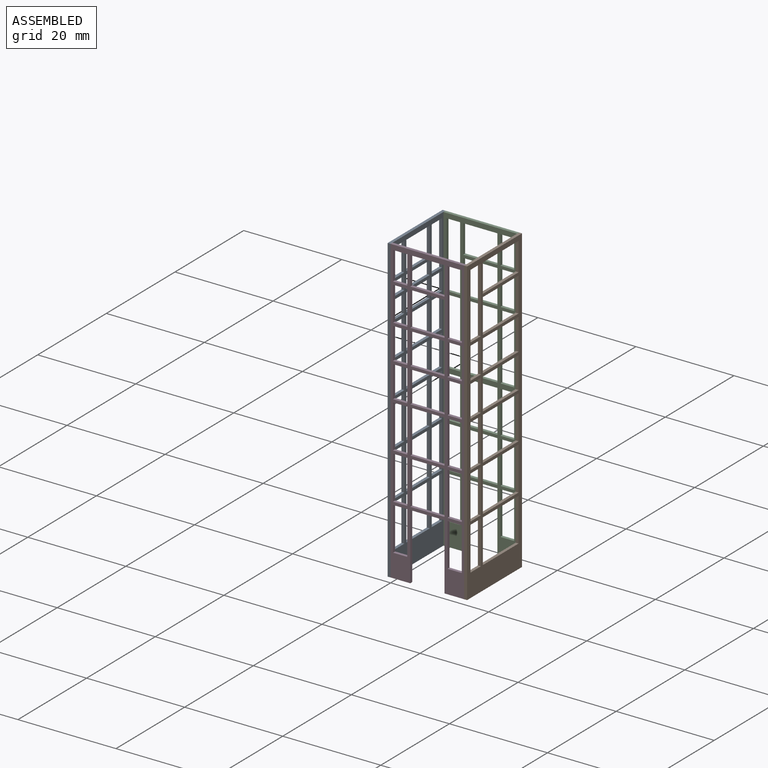
[diagram: assembled view]
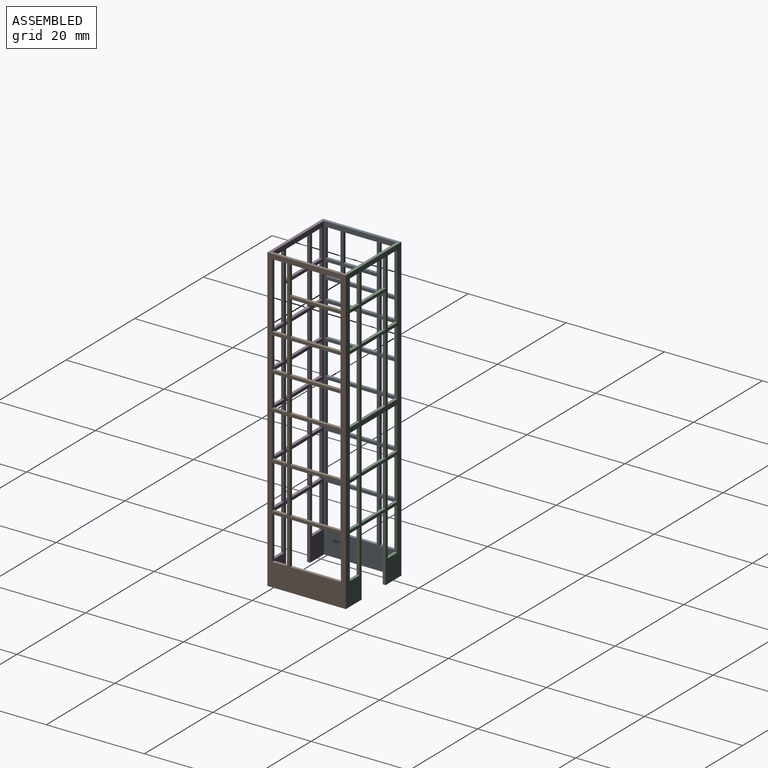
[diagram: assembled view, second angle]
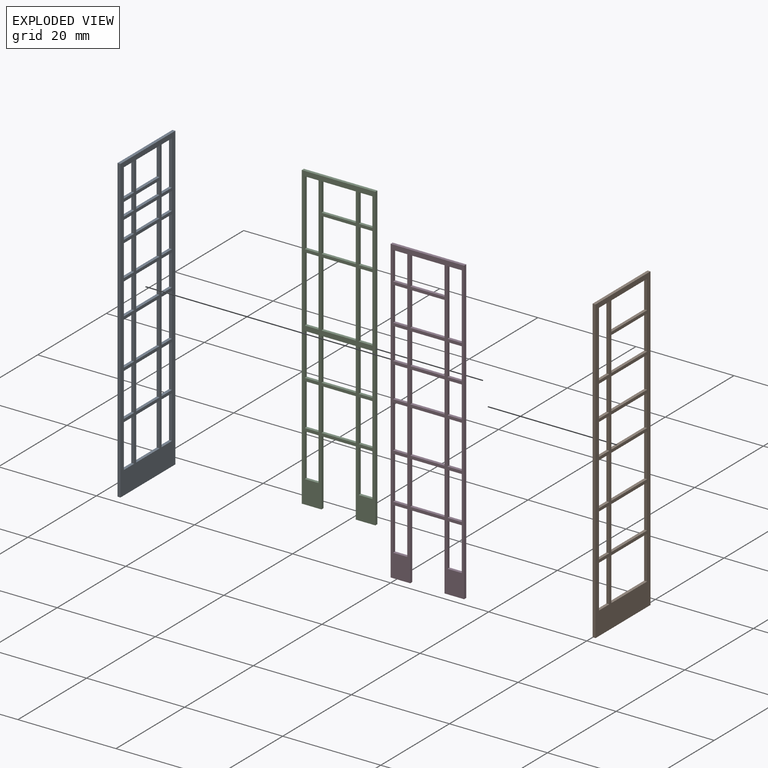
[diagram: exploded view]
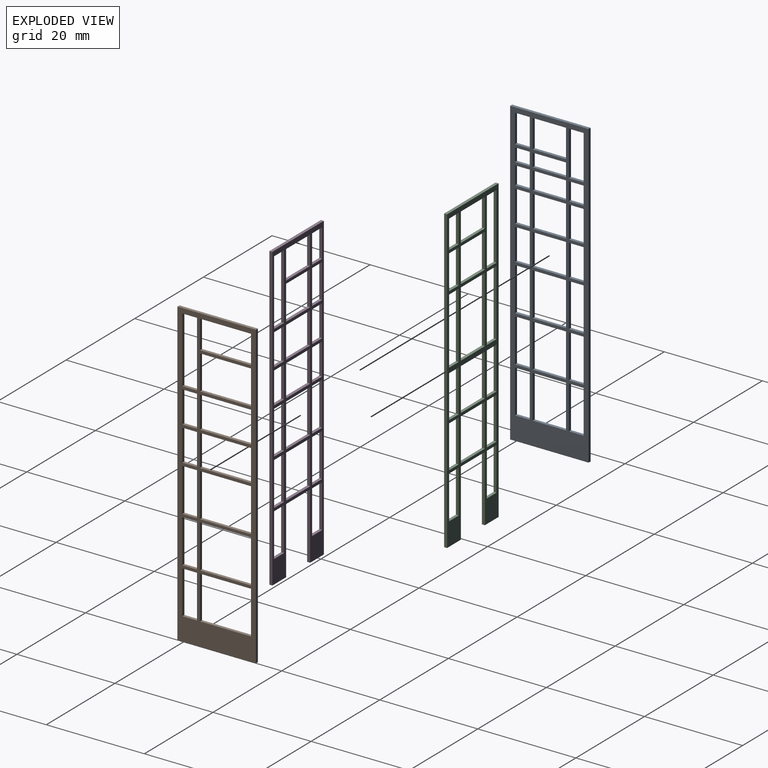
[diagram: exploded view, second angle]
ASSEMBLY  parts=4 mates=3
PART A: 98 faces, bbox 16x0.6x61.5 mm
  f0: plane 61.5x16mm, normal (0,-1,0), area 321.7mm2, adj f1,f2,f3,f4,f5,f6,f7,f8
  f1: plane 8.8x0.6mm, normal (-1,0,0), area 5.3mm2, adj f0,f2,f15,f16
  f2: plane 6.8x0.6mm, normal (0,0,1), area 4.1mm2, adj f0,f1,f3,f16
  f3: plane 8.8x0.6mm, normal (1,0,0), area 5.3mm2, adj f0,f2,f15,f16
  f4: plane 8.8x0.6mm, normal (1,0,0), area 5.3mm2, adj f0,f5,f13,f16
  f5: plane 3x0.6mm, normal (0,0,-1), area 1.8mm2, adj f0,f4,f6,f16
  f6: plane 8.8x0.6mm, normal (-1,0,0), area 5.3mm2, adj f0,f5,f13,f16
  f7: plane 8.8x0.6mm, normal (1,0,0), area 5.3mm2, adj f0,f8,f14,f16
  f8: plane 3x0.6mm, normal (0,0,-1), area 1.8mm2, adj f0,f7,f9,f16
  f9: plane 8.8x0.6mm, normal (-1,0,0), area 5.3mm2, adj f0,f8,f14,f16
  f10: plane 61.5x0.6mm, normal (-1,0,0), area 36.9mm2, adj f0,f11,f16,f97
  f11: plane 16x0.6mm, normal (0,0,-1), area 9.6mm2, adj f0,f10,f12,f16
  f12: plane 61.5x0.6mm, normal (1,0,0), area 36.9mm2, adj f0,f11,f16,f97
  f13: plane 3x0.6mm, normal (0,0,1), area 1.8mm2, adj f0,f4,f6,f16
  f14: plane 3x0.6mm, normal (0,0,1), area 1.8mm2, adj f0,f7,f9,f16
  f15: plane 6.8x0.6mm, normal (0,0,-1), area 4.1mm2, adj f0,f1,f3,f16
  f16: plane 61.5x16mm, normal (0,1,0), area 321.7mm2, adj f1,f2,f3,f4,f5,f6,f7,f8
  f17: plane 8.85x0.6mm, normal (1,0,0), area 5.3mm2, adj f0,f16,f18,f19
  f18: plane 3x0.6mm, normal (0,0,-1), area 1.8mm2, adj f0,f16,f17,f20
  f19: plane 3x0.6mm, normal (0,0,1), area 1.8mm2, adj f0,f16,f17,f20
  f20: plane 8.85x0.6mm, normal (-1,0,0), area 5.3mm2, adj f0,f16,f18,f19
  f21: plane 6.8x0.6mm, normal (0,0,-1), area 4.1mm2, adj f0,f16,f22,f23
  f22: plane 5.8x0.6mm, normal (-1,0,0), area 3.5mm2, adj f0,f16,f21,f24
  f23: plane 5.8x0.6mm, normal (1,0,0), area 3.5mm2, adj f0,f16,f21,f24
  f24: plane 6.8x0.6mm, normal (0,0,1), area 4.1mm2, adj f0,f16,f22,f23
  f25: plane 3x0.6mm, normal (0,0,-1), area 1.8mm2, adj f0,f16,f26,f27
  f26: plane 9.1x0.6mm, normal (-1,0,0), area 5.5mm2, adj f0,f16,f25,f28
  f27: plane 9.1x0.6mm, normal (1,0,0), area 5.5mm2, adj f0,f16,f25,f28
  f28: plane 3x0.6mm, normal (0,0,1), area 1.8mm2, adj f0,f16,f26,f27
  f29: plane 3x0.6mm, normal (0,0,-1), area 1.8mm2, adj f0,f16,f30,f31
  f30: plane 3.7x0.6mm, normal (-1,0,0), area 2.2mm2, adj f0,f16,f29,f32
  f31: plane 3.7x0.6mm, normal (1,0,0), area 2.2mm2, adj f0,f16,f29,f32
  f32: plane 3x0.6mm, normal (0,0,1), area 1.8mm2, adj f0,f16,f30,f31
  f33: plane 3x0.6mm, normal (0,0,-1), area 1.8mm2, adj f0,f16,f34,f35
  f34: plane 6.45x0.6mm, normal (-1,0,0), area 3.9mm2, adj f0,f16,f33,f36
  f35: plane 6.45x0.6mm, normal (1,0,0), area 3.9mm2, adj f0,f16,f33,f36
  f36: plane 3x0.6mm, normal (0,0,1), area 1.8mm2, adj f0,f16,f34,f35
  f37: plane 6.8x0.6mm, normal (0,0,-1), area 4.1mm2, adj f0,f16,f38,f39
  f38: plane 6.45x0.6mm, normal (-1,0,0), area 3.9mm2, adj f0,f16,f37,f40
  f39: plane 6.45x0.6mm, normal (1,0,0), area 3.9mm2, adj f0,f16,f37,f40
  f40: plane 6.8x0.6mm, normal (0,0,1), area 4.1mm2, adj f0,f16,f38,f39
  f41: plane 3x0.6mm, normal (0,0,-1), area 1.8mm2, adj f0,f16,f42,f43
  f42: plane 6.45x0.6mm, normal (-1,0,0), area 3.9mm2, adj f0,f16,f41,f44
  f43: plane 6.45x0.6mm, normal (1,0,0), area 3.9mm2, adj f0,f16,f41,f44
  f44: plane 3x0.6mm, normal (0,0,1), area 1.8mm2, adj f0,f16,f42,f43
  f45: plane 3x0.6mm, normal (0,0,-1), area 1.8mm2, adj f0,f16,f46,f47
  f46: plane 3.7x0.6mm, normal (-1,0,0), area 2.2mm2, adj f0,f16,f45,f48
  f47: plane 3.7x0.6mm, normal (1,0,0), area 2.2mm2, adj f0,f16,f45,f48
  f48: plane 3x0.6mm, normal (0,0,1), area 1.8mm2, adj f0,f16,f46,f47
  f49: plane 3x0.6mm, normal (0,0,-1), area 1.8mm2, adj f0,f16,f50,f51
  f50: plane 2.7x0.6mm, normal (-1,0,0), area 1.6mm2, adj f0,f16,f49,f52
  f51: plane 2.7x0.6mm, normal (1,0,0), area 1.6mm2, adj f0,f16,f49,f52
  f52: plane 3x0.6mm, normal (0,0,1), area 1.8mm2, adj f0,f16,f50,f51
  f53: plane 3x0.6mm, normal (0,0,-1), area 1.8mm2, adj f0,f16,f54,f55
  f54: plane 5.8x0.6mm, normal (-1,0,0), area 3.5mm2, adj f0,f16,f53,f56
  f55: plane 5.8x0.6mm, normal (1,0,0), area 3.5mm2, adj f0,f16,f53,f56
  f56: plane 3x0.6mm, normal (0,0,1), area 1.8mm2, adj f0,f16,f54,f55
  f57: plane 6.8x0.6mm, normal (0,0,-1), area 4.1mm2, adj f0,f16,f58,f59
  f58: plane 3.7x0.6mm, normal (-1,0,0), area 2.2mm2, adj f0,f16,f57,f60
  f59: plane 3.7x0.6mm, normal (1,0,0), area 2.2mm2, adj f0,f16,f57,f60
  f60: plane 6.8x0.6mm, normal (0,0,1), area 4.1mm2, adj f0,f16,f58,f59
  f61: plane 6.8x0.6mm, normal (0,0,-1), area 4.1mm2, adj f0,f16,f62,f63
  f62: plane 2.7x0.6mm, normal (-1,0,0), area 1.6mm2, adj f0,f16,f61,f64
  f63: plane 2.7x0.6mm, normal (1,0,0), area 1.6mm2, adj f0,f16,f61,f64
  f64: plane 6.8x0.6mm, normal (0,0,1), area 4.1mm2, adj f0,f16,f62,f63
  f65: plane 8.85x0.6mm, normal (1,0,0), area 5.3mm2, adj f0,f16,f66,f67
  f66: plane 6.8x0.6mm, normal (0,0,-1), area 4.1mm2, adj f0,f16,f65,f68
  f67: plane 6.8x0.6mm, normal (0,0,1), area 4.1mm2, adj f0,f16,f65,f68
  f68: plane 8.85x0.6mm, normal (-1,0,0), area 5.3mm2, adj f0,f16,f66,f67
  f69: plane 8.85x0.6mm, normal (1,0,0), area 5.3mm2, adj f0,f16,f70,f71
  f70: plane 3x0.6mm, normal (0,0,-1), area 1.8mm2, adj f0,f16,f69,f72
  f71: plane 3x0.6mm, normal (0,0,1), area 1.8mm2, adj f0,f16,f69,f72
  f72: plane 8.85x0.6mm, normal (-1,0,0), area 5.3mm2, adj f0,f16,f70,f71
  f73: plane 3x0.6mm, normal (0,0,-1), area 1.8mm2, adj f0,f16,f74,f75
  f74: plane 8.85x0.6mm, normal (-1,0,0), area 5.3mm2, adj f0,f16,f73,f76
  f75: plane 8.85x0.6mm, normal (1,0,0), area 5.3mm2, adj f0,f16,f73,f76
  f76: plane 3x0.6mm, normal (0,0,1), area 1.8mm2, adj f0,f16,f74,f75
  f77: plane 6.8x0.6mm, normal (0,0,-1), area 4.1mm2, adj f0,f16,f78,f79
  f78: plane 8.85x0.6mm, normal (-1,0,0), area 5.3mm2, adj f0,f16,f77,f80
  f79: plane 8.85x0.6mm, normal (1,0,0), area 5.3mm2, adj f0,f16,f77,f80
  f80: plane 6.8x0.6mm, normal (0,0,1), area 4.1mm2, adj f0,f16,f78,f79
  f81: plane 3x0.6mm, normal (0,0,-1), area 1.8mm2, adj f0,f16,f82,f83
  f82: plane 6.45x0.6mm, normal (-1,0,0), area 3.9mm2, adj f0,f16,f81,f84
  f83: plane 6.45x0.6mm, normal (1,0,0), area 3.9mm2, adj f0,f16,f81,f84
  f84: plane 3x0.6mm, normal (0,0,1), area 1.8mm2, adj f0,f16,f82,f83
  f85: plane 6.8x0.6mm, normal (0,0,-1), area 4.1mm2, adj f0,f16,f86,f87
  f86: plane 6.45x0.6mm, normal (-1,0,0), area 3.9mm2, adj f0,f16,f85,f88
  f87: plane 6.45x0.6mm, normal (1,0,0), area 3.9mm2, adj f0,f16,f85,f88
  f88: plane 6.8x0.6mm, normal (0,0,1), area 4.1mm2, adj f0,f16,f86,f87
  f89: plane 3x0.6mm, normal (0,0,-1), area 1.8mm2, adj f0,f16,f90,f91
  f90: plane 6.45x0.6mm, normal (-1,0,0), area 3.9mm2, adj f0,f16,f89,f92
  f91: plane 6.45x0.6mm, normal (1,0,0), area 3.9mm2, adj f0,f16,f89,f92
  f92: plane 3x0.6mm, normal (0,0,1), area 1.8mm2, adj f0,f16,f90,f91
  f93: plane 3x0.6mm, normal (0,0,-1), area 1.8mm2, adj f0,f16,f94,f95
  f94: plane 8.85x0.6mm, normal (-1,0,0), area 5.3mm2, adj f0,f16,f93,f96
  f95: plane 8.85x0.6mm, normal (1,0,0), area 5.3mm2, adj f0,f16,f93,f96
  f96: plane 3x0.6mm, normal (0,0,1), area 1.8mm2, adj f0,f16,f94,f95
  f97: plane 16x0.6mm, normal (0,0,1), area 9.6mm2, adj f0,f10,f12,f16
PART B: 58 faces, bbox 16x0.6x61.5 mm
  f0: plane 61.5x16mm, normal (0,-1,0), area 282.7mm2, adj f2,f3,f4,f5,f6,f7,f8,f9
  f1: plane 61.5x16mm, normal (0,1,0), area 282.7mm2, adj f2,f3,f4,f5,f6,f7,f8,f9
  f2: plane 61.5x0.6mm, normal (-1,0,0), area 36.9mm2, adj f0,f1,f3,f49
  f3: plane 16x0.6mm, normal (0,0,-1), area 9.6mm2, adj f0,f1,f2,f57
  f4: plane 10.4x0.6mm, normal (0,0,1), area 6.2mm2, adj f0,f1,f5,f56
  f5: plane 8.8x0.6mm, normal (1,0,0), area 5.3mm2, adj f0,f1,f4,f6
  f6: plane 10.4x0.6mm, normal (0,0,-1), area 6.2mm2, adj f0,f1,f5,f56
  f7: plane 8.8x0.6mm, normal (1,0,0), area 5.3mm2, adj f0,f1,f8,f10
  f8: plane 3x0.6mm, normal (0,0,-1), area 1.8mm2, adj f0,f1,f7,f9
  f9: plane 8.8x0.6mm, normal (-1,0,0), area 5.3mm2, adj f0,f1,f8,f10
  f10: plane 3x0.6mm, normal (0,0,1), area 1.8mm2, adj f0,f1,f7,f9
  f11: plane 8.85x0.6mm, normal (1,0,0), area 5.3mm2, adj f0,f1,f12,f13
  f12: plane 3x0.6mm, normal (0,0,-1), area 1.8mm2, adj f0,f1,f11,f14
  f13: plane 3x0.6mm, normal (0,0,1), area 1.8mm2, adj f0,f1,f11,f14
  f14: plane 8.85x0.6mm, normal (-1,0,0), area 5.3mm2, adj f0,f1,f12,f13
  f15: plane 10.4x0.6mm, normal (0,0,-1), area 6.2mm2, adj f0,f1,f16,f54
  f16: plane 5.8x0.6mm, normal (1,0,0), area 3.5mm2, adj f0,f1,f15,f17
  f17: plane 10.4x0.6mm, normal (0,0,1), area 6.2mm2, adj f0,f1,f16,f54
  f18: plane 10.4x0.6mm, normal (0,0,-1), area 6.2mm2, adj f0,f1,f19,f51
  f19: plane 7x0.6mm, normal (1,0,0), area 4.2mm2, adj f0,f1,f18,f20
  f20: plane 10.4x0.6mm, normal (0,0,1), area 6.2mm2, adj f0,f1,f19,f51
  f21: plane 6.45x0.6mm, normal (1,0,0), area 3.9mm2, adj f0,f1,f22,f23
  f22: plane 3x0.6mm, normal (0,0,-1), area 1.8mm2, adj f0,f1,f21,f24
  f23: plane 3x0.6mm, normal (0,0,1), area 1.8mm2, adj f0,f1,f21,f24
  f24: plane 6.45x0.6mm, normal (-1,0,0), area 3.9mm2, adj f0,f1,f22,f23
  f25: plane 10.4x0.6mm, normal (0,0,-1), area 6.2mm2, adj f0,f1,f26,f52
  f26: plane 8.85x0.6mm, normal (1,0,0), area 5.3mm2, adj f0,f1,f25,f27
  f27: plane 10.4x0.6mm, normal (0,0,1), area 6.2mm2, adj f0,f1,f26,f52
  f28: plane 8.85x0.6mm, normal (1,0,0), area 5.3mm2, adj f0,f1,f29,f30
  f29: plane 3x0.6mm, normal (0,0,-1), area 1.8mm2, adj f0,f1,f28,f31
  f30: plane 3x0.6mm, normal (0,0,1), area 1.8mm2, adj f0,f1,f28,f31
  f31: plane 8.85x0.6mm, normal (-1,0,0), area 5.3mm2, adj f0,f1,f29,f30
  f32: plane 10.4x0.6mm, normal (0,0,-1), area 6.2mm2, adj f0,f1,f33,f55
  f33: plane 8.85x0.6mm, normal (1,0,0), area 5.3mm2, adj f0,f1,f32,f34
  f34: plane 10.4x0.6mm, normal (0,0,1), area 6.2mm2, adj f0,f1,f33,f55
  f35: plane 3x0.6mm, normal (0,0,1), area 1.8mm2, adj f0,f1,f36,f37
  f36: plane 13.4x0.6mm, normal (1,0,0), area 8mm2, adj f0,f1,f35,f38
  f37: plane 13.4x0.6mm, normal (-1,0,0), area 8mm2, adj f0,f1,f35,f38
  f38: plane 3x0.6mm, normal (0,0,-1), area 1.8mm2, adj f0,f1,f36,f37
  f39: plane 10.4x0.6mm, normal (0,0,-1), area 6.2mm2, adj f0,f1,f40,f50
  f40: plane 6.45x0.6mm, normal (1,0,0), area 3.9mm2, adj f0,f1,f39,f41
  f41: plane 10.4x0.6mm, normal (0,0,1), area 6.2mm2, adj f0,f1,f40,f50
  f42: plane 6.45x0.6mm, normal (1,0,0), area 3.9mm2, adj f0,f1,f43,f44
  f43: plane 3x0.6mm, normal (0,0,-1), area 1.8mm2, adj f0,f1,f42,f45
  f44: plane 3x0.6mm, normal (0,0,1), area 1.8mm2, adj f0,f1,f42,f45
  f45: plane 6.45x0.6mm, normal (-1,0,0), area 3.9mm2, adj f0,f1,f43,f44
  f46: plane 10.4x0.6mm, normal (0,0,-1), area 6.2mm2, adj f0,f1,f47,f53
  f47: plane 6.45x0.6mm, normal (1,0,0), area 3.9mm2, adj f0,f1,f46,f48
  f48: plane 10.4x0.6mm, normal (0,0,1), area 6.2mm2, adj f0,f1,f47,f53
  f49: plane 16x0.6mm, normal (0,0,1), area 9.6mm2, adj f0,f1,f2,f57
  f50: plane 6.45x0.6mm, normal (-1,0,0), area 3.9mm2, adj f0,f1,f39,f41
  f51: plane 7x0.6mm, normal (-1,0,0), area 4.2mm2, adj f0,f1,f18,f20
  f52: plane 8.85x0.6mm, normal (-1,0,0), area 5.3mm2, adj f0,f1,f25,f27
  f53: plane 6.45x0.6mm, normal (-1,0,0), area 3.9mm2, adj f0,f1,f46,f48
  f54: plane 5.8x0.6mm, normal (-1,0,0), area 3.5mm2, adj f0,f1,f15,f17
  f55: plane 8.85x0.6mm, normal (-1,0,0), area 5.3mm2, adj f0,f1,f32,f34
  f56: plane 8.8x0.6mm, normal (-1,0,0), area 5.3mm2, adj f0,f1,f4,f6
  f57: plane 61.5x0.6mm, normal (1,0,0), area 36.9mm2, adj f0,f1,f3,f49
PART C: 74 faces, bbox 15x0.6x61.5 mm
  f0: plane 61.5x15mm, normal (0,-1,0), area 227.7mm2, adj f2,f3,f4,f5,f6,f7,f8,f9
  f1: plane 61.5x15mm, normal (0,1,0), area 227.7mm2, adj f2,f3,f4,f5,f6,f7,f8,f9
  f2: plane 61.5x0.6mm, normal (-1,0,0), area 36.9mm2, adj f0,f1,f3,f67
  f3: plane 4x0.6mm, normal (0,0,-1), area 2.4mm2, adj f0,f1,f2,f4
  f4: plane 13.5x0.6mm, normal (1,0,0), area 8.1mm2, adj f0,f1,f3,f5
  f5: plane 7x0.6mm, normal (0,0,-1), area 4.2mm2, adj f0,f1,f4,f6
  f6: plane 13.5x0.6mm, normal (-1,0,0), area 8.1mm2, adj f0,f1,f5,f7
  f7: plane 4x0.6mm, normal (0,0,-1), area 2.4mm2, adj f0,f1,f6,f73
  f8: plane 2.8x0.6mm, normal (0,0,1), area 1.7mm2, adj f0,f1,f9,f72
  f9: plane 8.8x0.6mm, normal (1,0,0), area 5.3mm2, adj f0,f1,f8,f10
  f10: plane 2.8x0.6mm, normal (0,0,-1), area 1.7mm2, adj f0,f1,f9,f72
  f11: plane 8.8x0.6mm, normal (1,0,0), area 5.3mm2, adj f0,f1,f12,f14
  f12: plane 2.8x0.6mm, normal (0,0,-1), area 1.7mm2, adj f0,f1,f11,f13
  f13: plane 8.8x0.6mm, normal (-1,0,0), area 5.3mm2, adj f0,f1,f12,f14
  f14: plane 2.8x0.6mm, normal (0,0,1), area 1.7mm2, adj f0,f1,f11,f13
  f15: plane 8.65x0.6mm, normal (1,0,0), area 5.2mm2, adj f0,f1,f16,f17
  f16: plane 2.8x0.6mm, normal (0,0,-1), area 1.7mm2, adj f0,f1,f15,f18
  f17: plane 2.8x0.6mm, normal (0,0,1), area 1.7mm2, adj f0,f1,f15,f18
  f18: plane 8.65x0.6mm, normal (-1,0,0), area 5.2mm2, adj f0,f1,f16,f17
  f19: plane 5.8x0.6mm, normal (-1,0,0), area 3.5mm2, adj f0,f1,f20,f21
  f20: plane 7x0.6mm, normal (0,0,1), area 4.2mm2, adj f0,f1,f19,f22
  f21: plane 7x0.6mm, normal (0,0,-1), area 4.2mm2, adj f0,f1,f19,f22
  f22: plane 5.8x0.6mm, normal (1,0,0), area 3.5mm2, adj f0,f1,f20,f21
  f23: plane 2.8x0.6mm, normal (0,0,-1), area 1.7mm2, adj f0,f1,f24,f25
  f24: plane 7x0.6mm, normal (-1,0,0), area 4.2mm2, adj f0,f1,f23,f26
  f25: plane 7x0.6mm, normal (1,0,0), area 4.2mm2, adj f0,f1,f23,f26
  f26: plane 2.8x0.6mm, normal (0,0,1), area 1.7mm2, adj f0,f1,f24,f25
  f27: plane 7x0.6mm, normal (0,0,-1), area 4.2mm2, adj f0,f1,f28,f29
  f28: plane 7x0.6mm, normal (-1,0,0), area 4.2mm2, adj f0,f1,f27,f30
  f29: plane 7x0.6mm, normal (1,0,0), area 4.2mm2, adj f0,f1,f27,f30
  f30: plane 7x0.6mm, normal (0,0,1), area 4.2mm2, adj f0,f1,f28,f29
  f31: plane 13.5x0.6mm, normal (-1,0,0), area 8.1mm2, adj f0,f1,f32,f33
  f32: plane 2.8x0.6mm, normal (0,0,1), area 1.7mm2, adj f0,f1,f31,f34
  f33: plane 2.8x0.6mm, normal (0,0,-1), area 1.7mm2, adj f0,f1,f31,f34
  f34: plane 13.5x0.6mm, normal (1,0,0), area 8.1mm2, adj f0,f1,f32,f33
  f35: plane 2.8x0.6mm, normal (0,0,-1), area 1.7mm2, adj f0,f1,f36,f37
  f36: plane 5.8x0.6mm, normal (-1,0,0), area 3.5mm2, adj f0,f1,f35,f38
  f37: plane 5.8x0.6mm, normal (1,0,0), area 3.5mm2, adj f0,f1,f35,f38
  f38: plane 2.8x0.6mm, normal (0,0,1), area 1.7mm2, adj f0,f1,f36,f37
  f39: plane 8.65x0.6mm, normal (1,0,0), area 5.2mm2, adj f0,f1,f40,f41
  f40: plane 7x0.6mm, normal (0,0,-1), area 4.2mm2, adj f0,f1,f39,f42
  f41: plane 7x0.6mm, normal (0,0,1), area 4.2mm2, adj f0,f1,f39,f42
  f42: plane 8.65x0.6mm, normal (-1,0,0), area 5.2mm2, adj f0,f1,f40,f41
  f43: plane 2.8x0.6mm, normal (0,0,-1), area 1.7mm2, adj f0,f1,f44,f71
  f44: plane 8.65x0.6mm, normal (1,0,0), area 5.2mm2, adj f0,f1,f43,f45
  f45: plane 2.8x0.6mm, normal (0,0,1), area 1.7mm2, adj f0,f1,f44,f71
  f46: plane 2.8x0.6mm, normal (0,0,-1), area 1.7mm2, adj f0,f1,f47,f70
  f47: plane 8.65x0.6mm, normal (1,0,0), area 5.2mm2, adj f0,f1,f46,f48
  f48: plane 2.8x0.6mm, normal (0,0,1), area 1.7mm2, adj f0,f1,f47,f70
  f49: plane 2.8x0.6mm, normal (0,0,-1), area 1.7mm2, adj f0,f1,f50,f69
  f50: plane 13.5x0.6mm, normal (1,0,0), area 8.1mm2, adj f0,f1,f49,f51
  f51: plane 2.8x0.6mm, normal (0,0,1), area 1.7mm2, adj f0,f1,f50,f69
  f52: plane 8.65x0.6mm, normal (-1,0,0), area 5.2mm2, adj f0,f1,f53,f54
  f53: plane 2.8x0.6mm, normal (0,0,1), area 1.7mm2, adj f0,f1,f52,f55
  f54: plane 2.8x0.6mm, normal (0,0,-1), area 1.7mm2, adj f0,f1,f52,f55
  f55: plane 8.65x0.6mm, normal (1,0,0), area 5.2mm2, adj f0,f1,f53,f54
  f56: plane 7x0.6mm, normal (0,0,-1), area 4.2mm2, adj f0,f1,f57,f58
  f57: plane 13.5x0.6mm, normal (-1,0,0), area 8.1mm2, adj f0,f1,f56,f59
  f58: plane 13.5x0.6mm, normal (1,0,0), area 8.1mm2, adj f0,f1,f56,f59
  f59: plane 7x0.6mm, normal (0,0,1), area 4.2mm2, adj f0,f1,f57,f58
  f60: plane 7x0.6mm, normal (0,0,-1), area 4.2mm2, adj f0,f1,f61,f62
  f61: plane 8.65x0.6mm, normal (-1,0,0), area 5.2mm2, adj f0,f1,f60,f63
  f62: plane 8.65x0.6mm, normal (1,0,0), area 5.2mm2, adj f0,f1,f60,f63
  f63: plane 7x0.6mm, normal (0,0,1), area 4.2mm2, adj f0,f1,f61,f62
  f64: plane 2.8x0.6mm, normal (0,0,1), area 1.7mm2, adj f0,f1,f66,f68
  f65: plane 2.8x0.6mm, normal (0,0,-1), area 1.7mm2, adj f0,f1,f66,f68
  f66: plane 13.4x0.6mm, normal (1,0,0), area 8mm2, adj f0,f1,f64,f65
  f67: plane 15x0.6mm, normal (0,0,1), area 9mm2, adj f0,f1,f2,f73
  f68: plane 13.4x0.6mm, normal (-1,0,0), area 8mm2, adj f0,f1,f64,f65
  f69: plane 13.5x0.6mm, normal (-1,0,0), area 8.1mm2, adj f0,f1,f49,f51
  f70: plane 8.65x0.6mm, normal (-1,0,0), area 5.2mm2, adj f0,f1,f46,f48
  f71: plane 8.65x0.6mm, normal (-1,0,0), area 5.2mm2, adj f0,f1,f43,f45
  f72: plane 8.8x0.6mm, normal (-1,0,0), area 5.3mm2, adj f0,f1,f8,f10
  f73: plane 61.5x0.6mm, normal (1,0,0), area 36.9mm2, adj f0,f1,f7,f67
PART D: 86 faces, bbox 15x0.6x61.5 mm
  f0: plane 61.5x15mm, normal (0,-1,0), area 219.7mm2, adj f2,f3,f4,f5,f6,f7,f8,f9
  f1: plane 61.5x15mm, normal (0,1,0), area 219.7mm2, adj f2,f3,f4,f5,f6,f7,f8,f9
  f2: plane 61.5x0.6mm, normal (-1,0,0), area 36.9mm2, adj f0,f1,f3,f78
  f3: plane 4x0.6mm, normal (0,0,-1), area 2.4mm2, adj f0,f1,f2,f4
  f4: plane 13.5x0.6mm, normal (1,0,0), area 8.1mm2, adj f0,f1,f3,f5
  f5: plane 7x0.6mm, normal (0,0,-1), area 4.2mm2, adj f0,f1,f4,f6
  f6: plane 13.5x0.6mm, normal (-1,0,0), area 8.1mm2, adj f0,f1,f5,f7
  f7: plane 4x0.6mm, normal (0,0,-1), area 2.4mm2, adj f0,f1,f6,f85
  f8: plane 2.9x0.6mm, normal (0,0,1), area 1.7mm2, adj f0,f1,f9,f84
  f9: plane 8.8x0.6mm, normal (1,0,0), area 5.3mm2, adj f0,f1,f8,f10
  f10: plane 2.9x0.6mm, normal (0,0,-1), area 1.7mm2, adj f0,f1,f9,f84
  f11: plane 8.8x0.6mm, normal (1,0,0), area 5.3mm2, adj f0,f1,f12,f14
  f12: plane 2.9x0.6mm, normal (0,0,-1), area 1.7mm2, adj f0,f1,f11,f13
  f13: plane 8.8x0.6mm, normal (-1,0,0), area 5.3mm2, adj f0,f1,f12,f14
  f14: plane 2.9x0.6mm, normal (0,0,1), area 1.7mm2, adj f0,f1,f11,f13
  f15: plane 8.85x0.6mm, normal (1,0,0), area 5.3mm2, adj f0,f1,f16,f17
  f16: plane 2.9x0.6mm, normal (0,0,-1), area 1.7mm2, adj f0,f1,f15,f18
  f17: plane 2.9x0.6mm, normal (0,0,1), area 1.7mm2, adj f0,f1,f15,f18
  f18: plane 8.85x0.6mm, normal (-1,0,0), area 5.3mm2, adj f0,f1,f16,f17
  f19: plane 7x0.6mm, normal (1,0,0), area 4.2mm2, adj f0,f1,f20,f21
  f20: plane 2.9x0.6mm, normal (0,0,-1), area 1.7mm2, adj f0,f1,f19,f22
  f21: plane 2.9x0.6mm, normal (0,0,1), area 1.7mm2, adj f0,f1,f19,f22
  f22: plane 7x0.6mm, normal (-1,0,0), area 4.2mm2, adj f0,f1,f20,f21
  f23: plane 6.45x0.6mm, normal (1,0,0), area 3.9mm2, adj f0,f1,f24,f25
  f24: plane 2.9x0.6mm, normal (0,0,-1), area 1.7mm2, adj f0,f1,f23,f79
  f25: plane 2.9x0.6mm, normal (0,0,1), area 1.7mm2, adj f0,f1,f23,f79
  f26: plane 2.9x0.6mm, normal (0,0,-1), area 1.7mm2, adj f0,f1,f27,f82
  f27: plane 6.45x0.6mm, normal (1,0,0), area 3.9mm2, adj f0,f1,f26,f28
  f28: plane 2.9x0.6mm, normal (0,0,1), area 1.7mm2, adj f0,f1,f27,f82
  f29: plane 7x0.6mm, normal (0,0,1), area 4.2mm2, adj f0,f1,f30,f31
  f30: plane 6.45x0.6mm, normal (1,0,0), area 3.9mm2, adj f0,f1,f29,f32
  f31: plane 6.45x0.6mm, normal (-1,0,0), area 3.9mm2, adj f0,f1,f29,f32
  f32: plane 7x0.6mm, normal (0,0,-1), area 4.2mm2, adj f0,f1,f30,f31
  f33: plane 5.8x0.6mm, normal (1,0,0), area 3.5mm2, adj f0,f1,f34,f35
  f34: plane 7x0.6mm, normal (0,0,-1), area 4.2mm2, adj f0,f1,f33,f36
  f35: plane 7x0.6mm, normal (0,0,1), area 4.2mm2, adj f0,f1,f33,f36
  f36: plane 5.8x0.6mm, normal (-1,0,0), area 3.5mm2, adj f0,f1,f34,f35
  f37: plane 5.8x0.6mm, normal (1,0,0), area 3.5mm2, adj f0,f1,f38,f39
  f38: plane 2.9x0.6mm, normal (0,0,-1), area 1.7mm2, adj f0,f1,f37,f40
  f39: plane 2.9x0.6mm, normal (0,0,1), area 1.7mm2, adj f0,f1,f37,f40
  f40: plane 5.8x0.6mm, normal (-1,0,0), area 3.5mm2, adj f0,f1,f38,f39
  f41: plane 13.4x0.6mm, normal (1,0,0), area 8mm2, adj f0,f1,f42,f43
  f42: plane 2.9x0.6mm, normal (0,0,-1), area 1.7mm2, adj f0,f1,f41,f81
  f43: plane 2.9x0.6mm, normal (0,0,1), area 1.7mm2, adj f0,f1,f41,f81
  f44: plane 7x0.6mm, normal (1,0,0), area 4.2mm2, adj f0,f1,f45,f46
  f45: plane 7x0.6mm, normal (0,0,-1), area 4.2mm2, adj f0,f1,f44,f47
  f46: plane 7x0.6mm, normal (0,0,1), area 4.2mm2, adj f0,f1,f44,f47
  f47: plane 7x0.6mm, normal (-1,0,0), area 4.2mm2, adj f0,f1,f45,f46
  f48: plane 8.85x0.6mm, normal (1,0,0), area 5.3mm2, adj f0,f1,f49,f50
  f49: plane 7x0.6mm, normal (0,0,-1), area 4.2mm2, adj f0,f1,f48,f51
  f50: plane 7x0.6mm, normal (0,0,1), area 4.2mm2, adj f0,f1,f48,f51
  f51: plane 8.85x0.6mm, normal (-1,0,0), area 5.3mm2, adj f0,f1,f49,f50
  f52: plane 2.9x0.6mm, normal (0,0,-1), area 1.7mm2, adj f0,f1,f53,f83
  f53: plane 8.85x0.6mm, normal (1,0,0), area 5.3mm2, adj f0,f1,f52,f54
  f54: plane 2.9x0.6mm, normal (0,0,1), area 1.7mm2, adj f0,f1,f53,f83
  f55: plane 8.85x0.6mm, normal (1,0,0), area 5.3mm2, adj f0,f1,f56,f57
  f56: plane 2.9x0.6mm, normal (0,0,-1), area 1.7mm2, adj f0,f1,f55,f58
  f57: plane 2.9x0.6mm, normal (0,0,1), area 1.7mm2, adj f0,f1,f55,f58
  f58: plane 8.85x0.6mm, normal (-1,0,0), area 5.3mm2, adj f0,f1,f56,f57
  f59: plane 8.85x0.6mm, normal (1,0,0), area 5.3mm2, adj f0,f1,f60,f61
  f60: plane 7x0.6mm, normal (0,0,-1), area 4.2mm2, adj f0,f1,f59,f62
  f61: plane 7x0.6mm, normal (0,0,1), area 4.2mm2, adj f0,f1,f59,f62
  f62: plane 8.85x0.6mm, normal (-1,0,0), area 5.3mm2, adj f0,f1,f60,f61
  f63: plane 6.45x0.6mm, normal (1,0,0), area 3.9mm2, adj f0,f1,f64,f65
  f64: plane 7x0.6mm, normal (0,0,-1), area 4.2mm2, adj f0,f1,f63,f66
  f65: plane 7x0.6mm, normal (0,0,1), area 4.2mm2, adj f0,f1,f63,f66
  f66: plane 6.45x0.6mm, normal (-1,0,0), area 3.9mm2, adj f0,f1,f64,f65
  f67: plane 6.45x0.6mm, normal (1,0,0), area 3.9mm2, adj f0,f1,f68,f69
  f68: plane 2.9x0.6mm, normal (0,0,-1), area 1.7mm2, adj f0,f1,f67,f70
  f69: plane 2.9x0.6mm, normal (0,0,1), area 1.7mm2, adj f0,f1,f67,f70
  f70: plane 6.45x0.6mm, normal (-1,0,0), area 3.9mm2, adj f0,f1,f68,f69
  f71: plane 6.45x0.6mm, normal (1,0,0), area 3.9mm2, adj f0,f1,f72,f73
  f72: plane 2.9x0.6mm, normal (0,0,-1), area 1.7mm2, adj f0,f1,f71,f74
  f73: plane 2.9x0.6mm, normal (0,0,1), area 1.7mm2, adj f0,f1,f71,f74
  f74: plane 6.45x0.6mm, normal (-1,0,0), area 3.9mm2, adj f0,f1,f72,f73
  f75: plane 2.9x0.6mm, normal (0,0,-1), area 1.7mm2, adj f0,f1,f76,f80
  f76: plane 8.85x0.6mm, normal (1,0,0), area 5.3mm2, adj f0,f1,f75,f77
  f77: plane 2.9x0.6mm, normal (0,0,1), area 1.7mm2, adj f0,f1,f76,f80
  f78: plane 15x0.6mm, normal (0,0,1), area 9mm2, adj f0,f1,f2,f85
  f79: plane 6.45x0.6mm, normal (-1,0,0), area 3.9mm2, adj f0,f1,f24,f25
  f80: plane 8.85x0.6mm, normal (-1,0,0), area 5.3mm2, adj f0,f1,f75,f77
  f81: plane 13.4x0.6mm, normal (-1,0,0), area 8mm2, adj f0,f1,f42,f43
  f82: plane 6.45x0.6mm, normal (-1,0,0), area 3.9mm2, adj f0,f1,f26,f28
  f83: plane 8.85x0.6mm, normal (-1,0,0), area 5.3mm2, adj f0,f1,f52,f54
  f84: plane 8.8x0.6mm, normal (-1,0,0), area 5.3mm2, adj f0,f1,f8,f10
  f85: plane 61.5x0.6mm, normal (1,0,0), area 36.9mm2, adj f0,f1,f7,f78
PLACE A rot(axis=(0,0,1),90deg) t=(-0.6,0,0)mm
PLACE B rot(axis=(0,0,1),90deg) t=(15,0,0)mm
PLACE C rot(axis=(0,0,1),180deg) t=(15,15.4,0)mm
PLACE D t=(0,0.6,0)mm
MATE fastened C.f73 <-> A.f0  axis (-1,0,0) through (0,16,0)mm
MATE fastened D.f85 <-> B.f1  axis (1,0,0) through (15,0,0)mm
MATE fastened B.f1 <-> C.f2  axis (-1,0,0) through (15,16,0)mm
